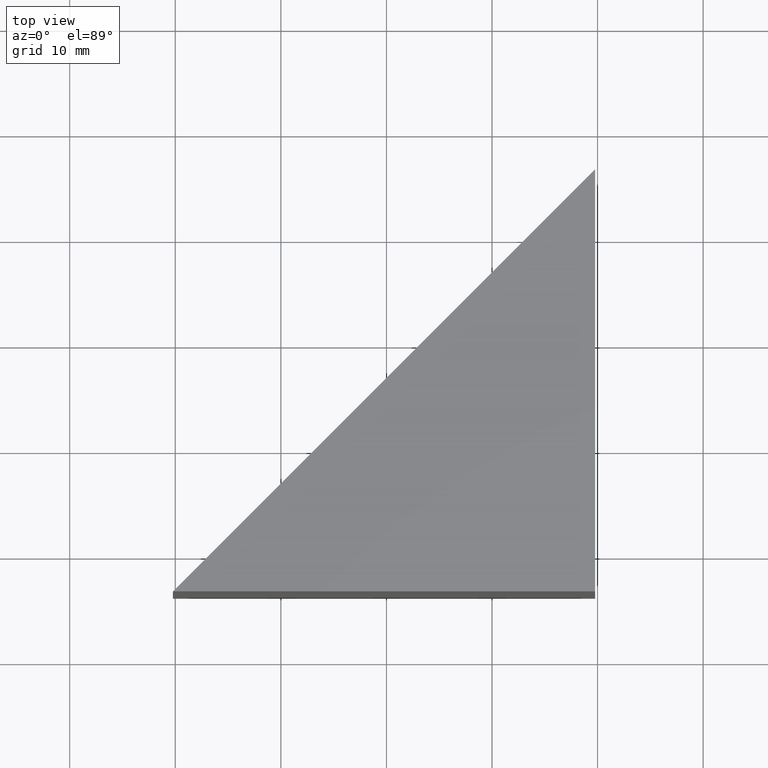
[diagram: clean part render]
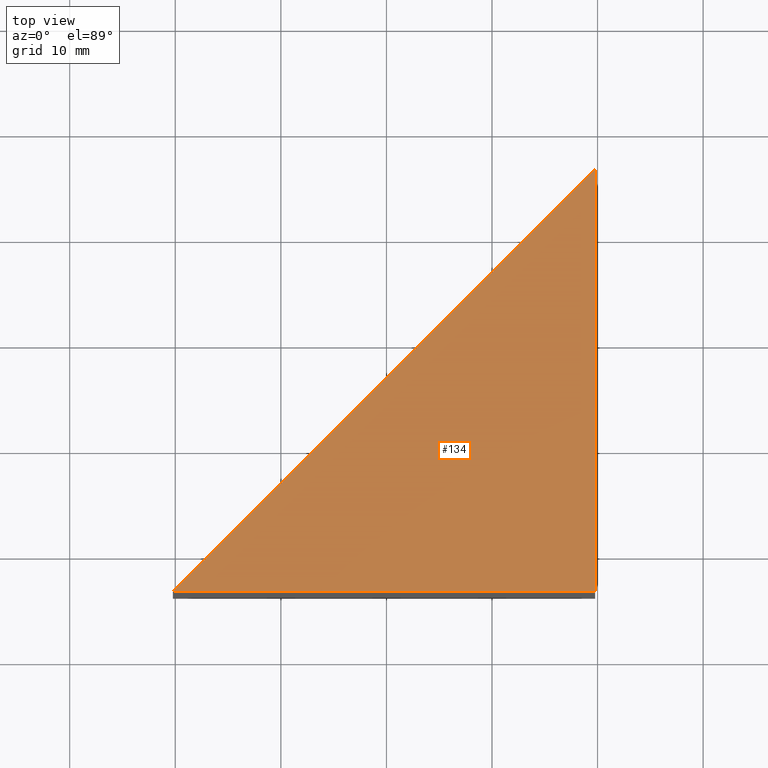
[diagram: same view with one face highlighted and labeled with its STEP entity id]
A machine part, top view. The second image highlights one B-rep face of the part: STEP entity #134.
In plain terms, the highlighted planar face has unit normal (0, 0, -1).
Its self-contained STEP definition (entity closure, byte-faithful):
#39 = EDGE_LOOP ( 'NONE', ( #100, #150, #260 ) ) ;
#41 = LINE ( 'NONE', #220, #266 ) ;
#42 = CARTESIAN_POINT ( 'NONE',  ( 99.77125096872458700, 106.2232561922448300, 40.00000000000000000 ) ) ;
#46 = EDGE_CURVE ( 'NONE', #194, #269, #41, .T. ) ;
#72 = EDGE_CURVE ( 'NONE', #165, #194, #218, .T. ) ;
#81 = DIRECTION ( 'NONE',  ( 0.0000000000000000000, 1.000000000000000000, 0.0000000000000000000 ) ) ;
#87 = LINE ( 'NONE', #132, #224 ) ;
#90 = DIRECTION ( 'NONE',  ( -1.000000000000000000, 0.0000000000000000000, -0.0000000000000000000 ) ) ;
#100 = ORIENTED_EDGE ( 'NONE', *, *, #72, .T. ) ;
#111 = EDGE_CURVE ( 'NONE', #269, #165, #87, .T. ) ;
#114 = CARTESIAN_POINT ( 'NONE',  ( 139.7712509687245900, 106.2232561922448300, 40.00000000000000000 ) ) ;
#132 = CARTESIAN_POINT ( 'NONE',  ( 99.77125096872458700, 106.2232561922448300, 40.00000000000000000 ) ) ;
#134 = ADVANCED_FACE ( 'NONE', ( #231 ), #171, .F. ) ;
#150 = ORIENTED_EDGE ( 'NONE', *, *, #46, .T. ) ;
#152 = AXIS2_PLACEMENT_3D ( 'NONE', #234, #258, #90 ) ;
#165 = VERTEX_POINT ( 'NONE', #42 ) ;
#171 = PLANE ( 'NONE',  #152 ) ;
#194 = VERTEX_POINT ( 'NONE', #114 ) ;
#199 = DIRECTION ( 'NONE',  ( 1.000000000000000000, -0.0000000000000000000, -0.0000000000000000000 ) ) ;
#216 = VECTOR ( 'NONE', #199, 1000.000000000000000 ) ;
#218 = LINE ( 'NONE', #278, #216 ) ;
#220 = CARTESIAN_POINT ( 'NONE',  ( 139.7712509687245900, 106.2232561922448300, 40.00000000000000000 ) ) ;
#224 = VECTOR ( 'NONE', #274, 1000.000000000000100 ) ;
#231 = FACE_OUTER_BOUND ( 'NONE', #39, .T. ) ;
#234 = CARTESIAN_POINT ( 'NONE',  ( 0.0000000000000000000, 0.0000000000000000000, 40.00000000000000000 ) ) ;
#258 = DIRECTION ( 'NONE',  ( 0.0000000000000000000, 0.0000000000000000000, -1.000000000000000000 ) ) ;
#260 = ORIENTED_EDGE ( 'NONE', *, *, #111, .T. ) ;
#266 = VECTOR ( 'NONE', #81, 1000.000000000000000 ) ;
#269 = VERTEX_POINT ( 'NONE', #282 ) ;
#274 = DIRECTION ( 'NONE',  ( -0.7071067811865474600, -0.7071067811865474600, -0.0000000000000000000 ) ) ;
#278 = CARTESIAN_POINT ( 'NONE',  ( 139.7712509687245900, 106.2232561922448300, 40.00000000000000000 ) ) ;
#282 = CARTESIAN_POINT ( 'NONE',  ( 139.7712509687245900, 146.2232561922448300, 40.00000000000000000 ) ) ;